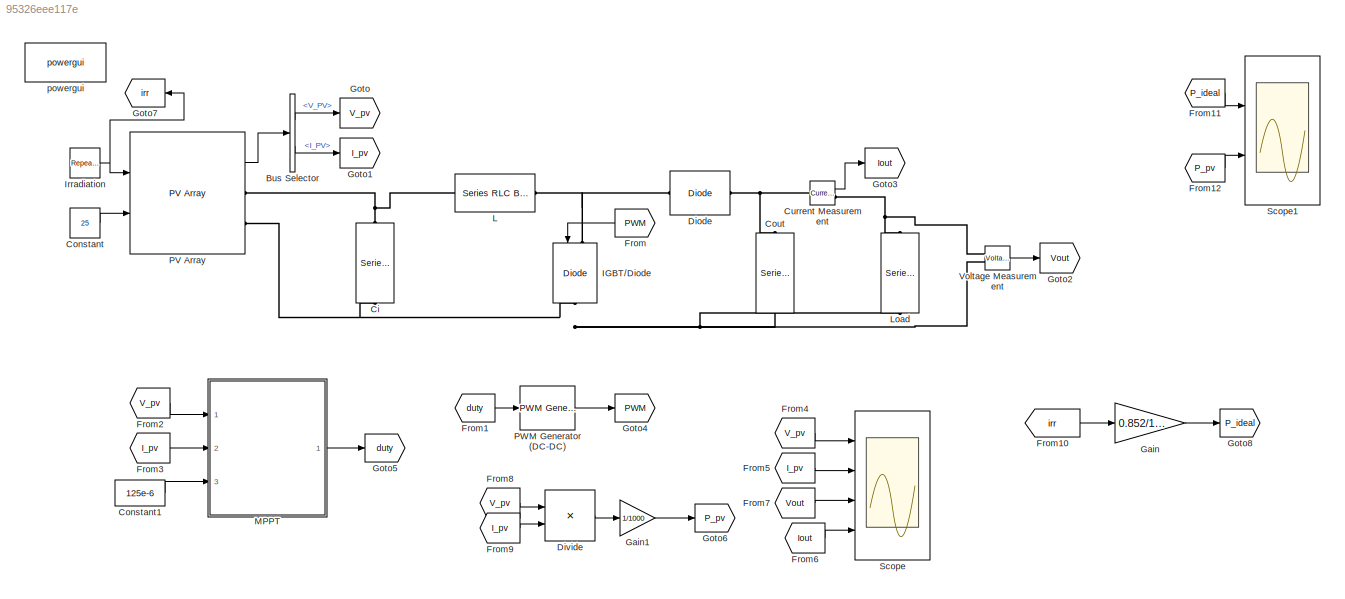
MODEL slx_95326eee117e
KIND model
CONFIG AbsTol = auto
CONFIG EnableMultiTasking = off
CONFIG FixedStep = auto
CONFIG MaxStep = auto
CONFIG MinStep = auto
CONFIG RelTol = 1e-3
CONFIG SampleTimeConstraint = Unconstrained
CONFIG SolverName = VariableStepAuto
CONFIG StartTime = 0.0
CONFIG StopTime = 1.5
BLOCK [BusSelector] Bus Selector
  OutputSignals = V_PV,I_PV
  Ports = [1, 2]
BLOCK [Reference] Ci  REF=powerlib/Elements/Series RLC Branch
  NameLocation = left
  Ports = [0, 0, 0, 0, 0, 1, 1]
  SourceBlock = powerlib/Elements/Series RLC Branch
  SourceProductBaseCode = PS
  SourceType = Series RLC Branch
BLOCK [Constant] Constant
  Value = 25
BLOCK [Constant] Constant1
  Value = 125e-6
BLOCK [Reference] Cout  REF=powerlib/Elements/Series RLC Branch
  NameLocation = left
  Ports = [0, 0, 0, 0, 0, 1, 1]
  SourceBlock = powerlib/Elements/Series RLC Branch
  SourceProductBaseCode = PS
  SourceType = Series RLC Branch
BLOCK [Reference] Current Measurement  REF=powerlib/Measurements/Current Measurement
  Ports = [0, 1, 0, 0, 0, 1, 1]
  SourceBlock = powerlib/Measurements/Current Measurement
  SourceProductBaseCode = PS
  SourceType = Current Measurement
  UserDataPersistent = on
BLOCK [Reference] Diode  REF=powerlib/Power
Electronics/Diode
  Ports = [0, 0, 0, 0, 0, 1, 1]
  SourceBlock = powerlib/Power\nElectronics/Diode
  SourceProductBaseCode = PS
  SourceType = Diode
BLOCK [Product] Divide
  Inputs = **
  Ports = [2, 1]
BLOCK [From] From
  GotoTag = PWM
  NameLocation = top
BLOCK [From] From1
  GotoTag = duty
BLOCK [From] From10
  GotoTag = irr
BLOCK [From] From11
  GotoTag = P_ideal
BLOCK [From] From12
  GotoTag = P_pv
BLOCK [From] From2
  GotoTag = V_pv
BLOCK [From] From3
  GotoTag = I_pv
BLOCK [From] From4
  GotoTag = V_pv
BLOCK [From] From5
  GotoTag = I_pv
BLOCK [From] From6
  GotoTag = Iout
BLOCK [From] From7
  GotoTag = Vout
BLOCK [From] From8
  GotoTag = V_pv
BLOCK [From] From9
  GotoTag = I_pv
BLOCK [Gain] Gain
  Gain = 0.852/1000
BLOCK [Gain] Gain1
  Gain = 1/1000
BLOCK [Goto] Goto
  GotoTag = V_pv
BLOCK [Goto] Goto1
  GotoTag = I_pv
BLOCK [Goto] Goto2
  GotoTag = Vout
BLOCK [Goto] Goto3
  GotoTag = Iout
BLOCK [Goto] Goto4
  GotoTag = PWM
BLOCK [Goto] Goto5
  GotoTag = duty
BLOCK [Goto] Goto6
  GotoTag = P_pv
BLOCK [Goto] Goto7
  GotoTag = irr
BLOCK [Goto] Goto8
  GotoTag = P_ideal
BLOCK [Reference] IGBT//Diode  REF=powerlib/Power
Electronics/IGBT//Diode
  NameLocation = left
  Ports = [1, 0, 0, 0, 0, 1, 1]
  SourceBlock = powerlib/Power\nElectronics/IGBT//Diode
  SourceProductBaseCode = PS
  SourceType = IGBT/Diode
BLOCK [Reference] Irradiation  REF=simulink/Sources/Repeating
Sequence
Interpolated
  Ports = [0, 1]
  SourceBlock = simulink/Sources/Repeating\nSequence\nInterpolated
  SourceProductBaseCode = SL
  SourceType = Repeating Sequence Interpolated
BLOCK [Reference] L  REF=powerlib/Elements/Series RLC Branch
  Ports = [0, 0, 0, 0, 0, 1, 1]
  SourceBlock = powerlib/Elements/Series RLC Branch
  SourceProductBaseCode = PS
  SourceType = Series RLC Branch
BLOCK [Reference] Load  REF=powerlib/Elements/Series RLC Branch
  NameLocation = left
  Ports = [0, 0, 0, 0, 0, 1, 1]
  SourceBlock = powerlib/Elements/Series RLC Branch
  SourceProductBaseCode = PS
  SourceType = Series RLC Branch
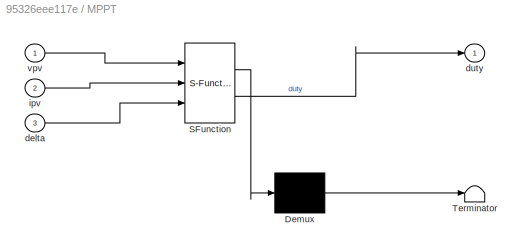
BLOCK [SubSystem] MPPT
  ErrorFcn = Stateflow.Translate.translate
  PermitHierarchicalResolution = ExplicitOnly
  Ports = [3, 1]
  RequestExecContextInheritance = off
  SFBlockType = MATLAB Function
  TreatAsAtomicUnit = on
BLOCK [Demux] MPPT/ Demux 
  Outputs = 1
  Ports = [1, 1]
BLOCK [S-Function] MPPT/ SFunction 
  EnableBusSupport = on
  FunctionName = sf_sfun
  PortCounts = [3 2]
  Ports = [3, 2]
  SFcnIsStateOwnerBlock = off
  SFunctionDeploymentMode = off
  Tag = Stateflow S-Function 2
BLOCK [Terminator] MPPT/ Terminator 
BLOCK [Inport] MPPT/delta
  Port = 3
BLOCK [Outport] MPPT/duty
BLOCK [Inport] MPPT/ipv
  Port = 2
BLOCK [Inport] MPPT/vpv
BLOCK [Reference] PV Array   REF=re_lib/Solar/PV Array
  Ports = [2, 1, 0, 0, 0, 0, 2]
  SourceBlock = re_lib/Solar/PV Array
  SourceProductBaseCode = PS
  SourceType = PV array
BLOCK [Reference] PWM Generator (DC-DC)   REF=powerlib_meascontrol/Pulse & Signal
Generators/PWM Generator
(DC-DC)
  Ports = [1, 1]
  SourceBlock = powerlib_meascontrol/Pulse & Signal\nGenerators/PWM Generator\n(DC-DC)
  SourceProductBaseCode = PS
  SourceType = PWM Generator (DC-DC)
BLOCK [Scope] Scope
  Floating = off
  NumInputPorts = 4
  Ports = [4]
  ScopeSpecificationString = Simulink.scopes.TimeScopeBlockCfg('CurrentConfiguration', extmgr.ConfigurationSet(extmgr.Configuration('Core','General UI',true,'FigureColor',[1 1 1]),extmgr.Configuration('Core','Source UI',true),extmgr.Configuration('Sources','WiredSimulink',true),extmgr.Configuration('Visuals','Time Domain',true,'SerializedDisplays',{struct('MinYLimReal','-8.42342','MaxYLimReal','75.81079','YLabelReal','','MinY...<+7172ch>
BLOCK [Scope] Scope1
  Floating = off
  NumInputPorts = 2
  Ports = [2]
  ScopeSpecificationString = Simulink.scopes.TimeScopeBlockCfg('CurrentConfiguration', extmgr.ConfigurationSet(extmgr.Configuration('Core','General UI',true,'FigureColor',[1 1 1]),extmgr.Configuration('Core','Source UI',true),extmgr.Configuration('Sources','WiredSimulink',true,'DataLoggingVariableName','ScopeData1'),extmgr.Configuration('Visuals','Time Domain',true,'SerializedDisplays',{struct('MinYLimReal','-0.91083','MaxYLi...<+2251ch>
BLOCK [Reference] Voltage Measurement  REF=powerlib/Measurements/Voltage Measurement
  Ports = [0, 1, 0, 0, 0, 2]
  SourceBlock = powerlib/Measurements/Voltage Measurement
  SourceProductBaseCode = PS
  SourceType = Voltage Measurement
  UserDataPersistent = on
BLOCK [Reference] powergui  REF=powerlib/powergui
  Ports = []
  Priority = 1
  SourceBlock = powerlib/powergui
  SourceProductBaseCode = PS
  SourceType = PSB option menu block
LINE Bus Selector:1 -> Goto:1
LINE Bus Selector:2 -> Goto1:1
LINE Constant1:1 -> MPPT:3
LINE Constant:1 -> PV Array :2
LINE Current Measurement:1 -> Goto3:1
LINE Divide:1 -> Gain1:1
LINE From10:1 -> Gain:1
LINE From11:1 -> Scope1:1
LINE From12:1 -> Scope1:2
LINE From1:1 -> PWM Generator (DC-DC) :1
LINE From2:1 -> MPPT:1
LINE From3:1 -> MPPT:2
LINE From4:1 -> Scope:1
LINE From5:1 -> Scope:2
LINE From6:1 -> Scope:4
LINE From7:1 -> Scope:3
LINE From8:1 -> Divide:1
LINE From9:1 -> Divide:2
LINE From:1 -> IGBT//Diode:1
LINE Gain1:1 -> Goto6:1
LINE Gain:1 -> Goto8:1
NET Irradiation:1 -> Goto7:1, PV Array :1
LINE MPPT:1 -> Goto5:1
LINE PV Array :1 -> Bus Selector:1
LINE PWM Generator (DC-DC) :1 -> Goto4:1
LINE Voltage Measurement:1 -> Goto2:1
PNET net1: Ci:LConn1 -- L:LConn1 -- PV Array :RConn1
PNET net2: Ci:RConn1 -- Cout:RConn1 -- IGBT//Diode:RConn1 -- Load:RConn1 -- PV Array :RConn2 -- Voltage Measurement:LConn2
PNET net3: Cout:LConn1 -- Current Measurement:LConn1 -- Diode:RConn1
PNET net4: Current Measurement:RConn1 -- Load:LConn1 -- Voltage Measurement:LConn1
PNET net5: Diode:LConn1 -- IGBT//Diode:LConn1 -- L:RConn1
note: NET lines group one-source signal fan-out (src -> all destinations, sorted); 1:1 wires keep LINE; PNET lines group multi-terminal physical nets as a canonical sorted terminal list (undirected conserving connections); 2-terminal nets keep the pairwise PLINE form
CHART MPPT states=1 transitions=1
  STATE_LABEL 'eML_blk_kernel()'
  STATE_LABEL 'SCRIPT:\nfunction duty = MPPT_algorithm(vpv,ipv,delta)\nduty_init = 0.1;\nduty_min=0; \nduty_max=0.85;\n\npersistent Vold Pold duty_old;\nif isempty(Vold)\n    Vold=0;\n    Pold=0;\n    duty_old=duty_init;\nend\nP= vpv*ipv;\ndV= vpv - Vold;\ndP= P - Pold;\n\nif dP ~=0 && vpv>30\n    if dP < 0\n        if dV < 0\n            duty = duty_old - delta;\n        else\n            duty = duty_old + delta;\n        end\n    el...<+271ch>'
CHART  states=0 transitions=0
